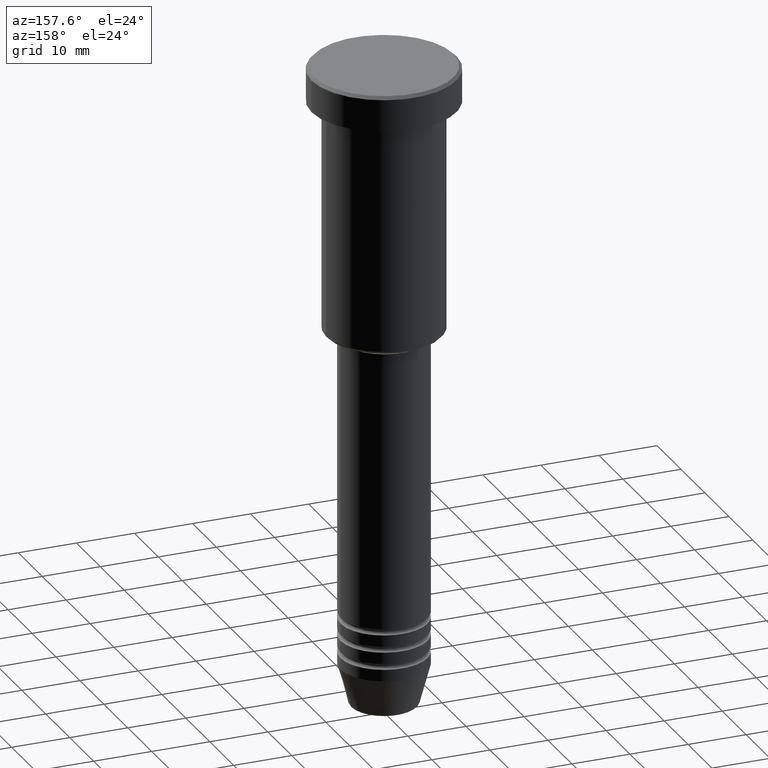
[diagram: clean part render]
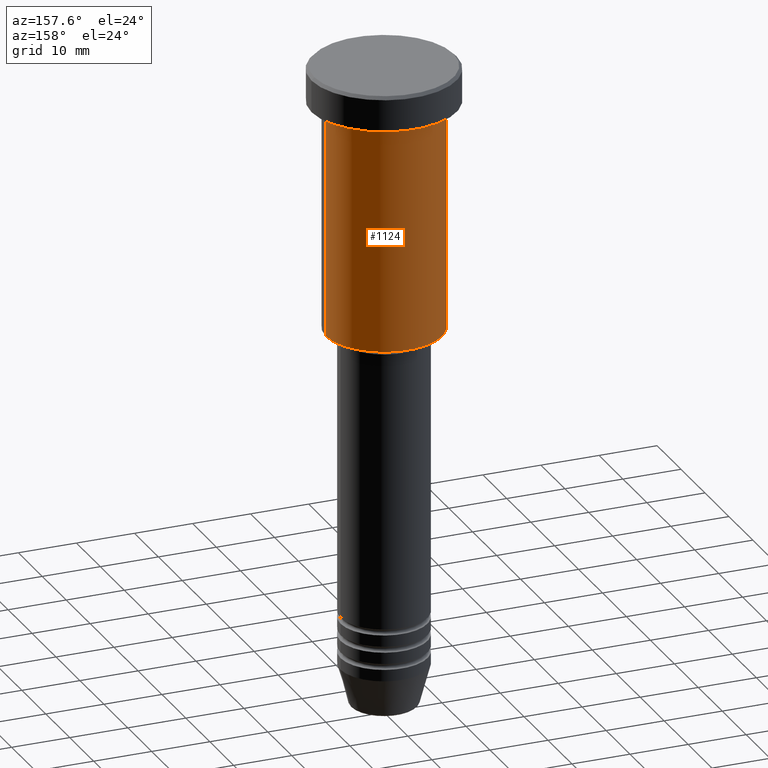
[diagram: same view with one face highlighted and labeled with its STEP entity id]
A machine part, auxiliary view. The second image highlights one B-rep face of the part: STEP entity #1124.
In plain terms, the highlighted cylindrical surface (partial cylindrical patch) has radius 10 mm, axis along (-0, -0, 1).
Its self-contained STEP definition (entity closure, byte-faithful):
#26 = CARTESIAN_POINT ( 'NONE',  ( -10.00000000000000000, 1.224646799147353256E-15, -45.49999999999997158 ) ) ;
#60 = EDGE_LOOP ( 'NONE', ( #765, #327, #149, #586 ) ) ;
#145 = VERTEX_POINT ( 'NONE', #602 ) ;
#149 = ORIENTED_EDGE ( 'NONE', *, *, #774, .F. ) ;
#155 = CARTESIAN_POINT ( 'NONE',  ( -10.00000000000000000, 1.224646799147353256E-15, 0.000000000000000000 ) ) ;
#207 = VERTEX_POINT ( 'NONE', #954 ) ;
#212 = DIRECTION ( 'NONE',  ( -0.000000000000000000, -0.000000000000000000, 1.000000000000000000 ) ) ;
#220 = CARTESIAN_POINT ( 'NONE',  ( 0.000000000000000000, 0.000000000000000000, -45.49999999999997158 ) ) ;
#247 = VECTOR ( 'NONE', #620, 1000.000000000000000 ) ;
#270 = CARTESIAN_POINT ( 'NONE',  ( 10.00000000000000000, 0.000000000000000000, -6.999999999999996447 ) ) ;
#278 = EDGE_CURVE ( 'NONE', #573, #145, #326, .T. ) ;
#326 = LINE ( 'NONE', #155, #247 ) ;
#327 = ORIENTED_EDGE ( 'NONE', *, *, #278, .T. ) ;
#343 = DIRECTION ( 'NONE',  ( -0.000000000000000000, -0.000000000000000000, 1.000000000000000000 ) ) ;
#482 = DIRECTION ( 'NONE',  ( 1.000000000000000000, 0.000000000000000000, 0.000000000000000000 ) ) ;
#485 = CIRCLE ( 'NONE', #966, 10.00000000000000000 ) ;
#518 = AXIS2_PLACEMENT_3D ( 'NONE', #220, #860, #946 ) ;
#534 = VECTOR ( 'NONE', #212, 1000.000000000000000 ) ;
#566 = CARTESIAN_POINT ( 'NONE',  ( 0.000000000000000000, 0.000000000000000000, 0.000000000000000000 ) ) ;
#571 = CYLINDRICAL_SURFACE ( 'NONE', #879, 10.00000000000000000 ) ;
#573 = VERTEX_POINT ( 'NONE', #26 ) ;
#586 = ORIENTED_EDGE ( 'NONE', *, *, #1102, .F. ) ;
#602 = CARTESIAN_POINT ( 'NONE',  ( -10.00000000000000000, 1.224646799147353256E-15, -6.999999999999996447 ) ) ;
#607 = DIRECTION ( 'NONE',  ( 1.000000000000000000, 0.000000000000000000, 0.000000000000000000 ) ) ;
#620 = DIRECTION ( 'NONE',  ( -0.000000000000000000, -0.000000000000000000, 1.000000000000000000 ) ) ;
#655 = LINE ( 'NONE', #1047, #534 ) ;
#765 = ORIENTED_EDGE ( 'NONE', *, *, #1146, .T. ) ;
#774 = EDGE_CURVE ( 'NONE', #887, #145, #485, .T. ) ;
#782 = CARTESIAN_POINT ( 'NONE',  ( 0.000000000000000000, 0.000000000000000000, -6.999999999999996447 ) ) ;
#860 = DIRECTION ( 'NONE',  ( -0.000000000000000000, -0.000000000000000000, 1.000000000000000000 ) ) ;
#879 = AXIS2_PLACEMENT_3D ( 'NONE', #566, #941, #482 ) ;
#887 = VERTEX_POINT ( 'NONE', #270 ) ;
#941 = DIRECTION ( 'NONE',  ( -0.000000000000000000, -0.000000000000000000, 1.000000000000000000 ) ) ;
#946 = DIRECTION ( 'NONE',  ( -1.000000000000000000, 0.000000000000000000, 0.000000000000000000 ) ) ;
#954 = CARTESIAN_POINT ( 'NONE',  ( 10.00000000000000000, 0.000000000000000000, -45.49999999999997158 ) ) ;
#966 = AXIS2_PLACEMENT_3D ( 'NONE', #782, #343, #607 ) ;
#1034 = FACE_OUTER_BOUND ( 'NONE', #60, .T. ) ;
#1047 = CARTESIAN_POINT ( 'NONE',  ( 10.00000000000000000, 0.000000000000000000, 0.000000000000000000 ) ) ;
#1102 = EDGE_CURVE ( 'NONE', #207, #887, #655, .T. ) ;
#1117 = CIRCLE ( 'NONE', #518, 10.00000000000000000 ) ;
#1124 = ADVANCED_FACE ( 'NONE', ( #1034 ), #571, .T. ) ;
#1146 = EDGE_CURVE ( 'NONE', #207, #573, #1117, .T. ) ;